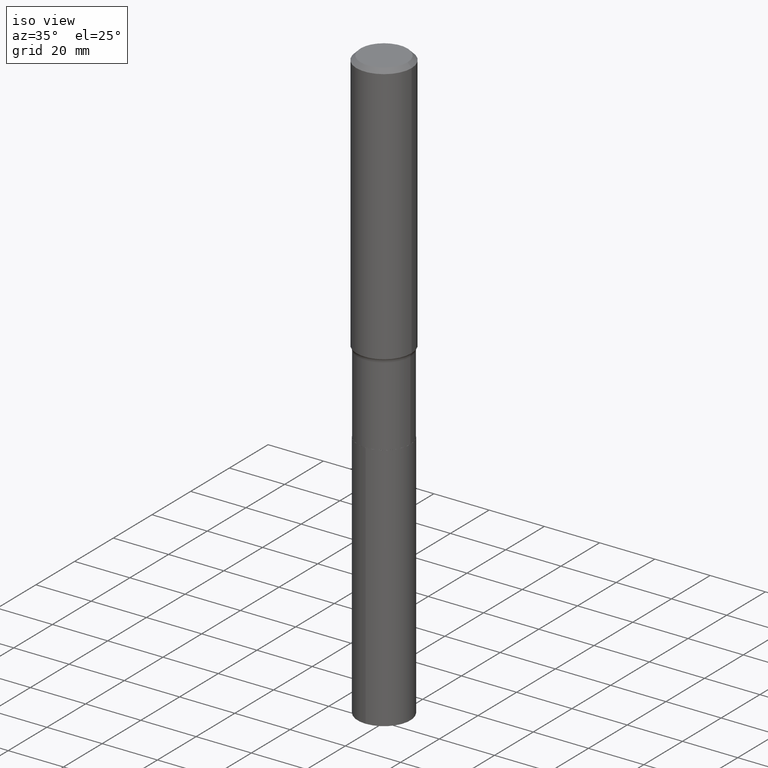
[diagram: clean part render]
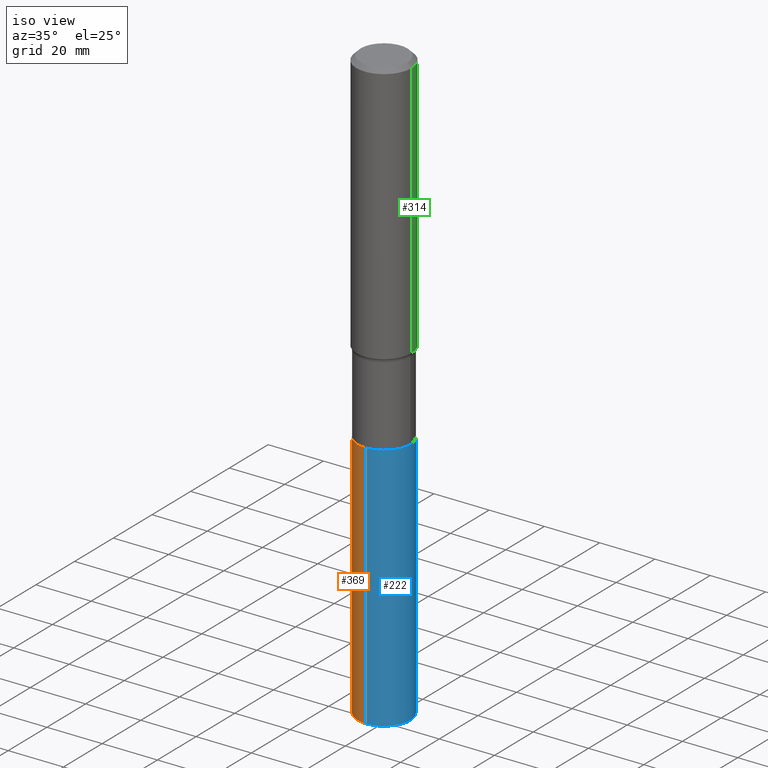
[diagram: same view with three faces highlighted in distinct colors, each labeled with its STEP entity id]
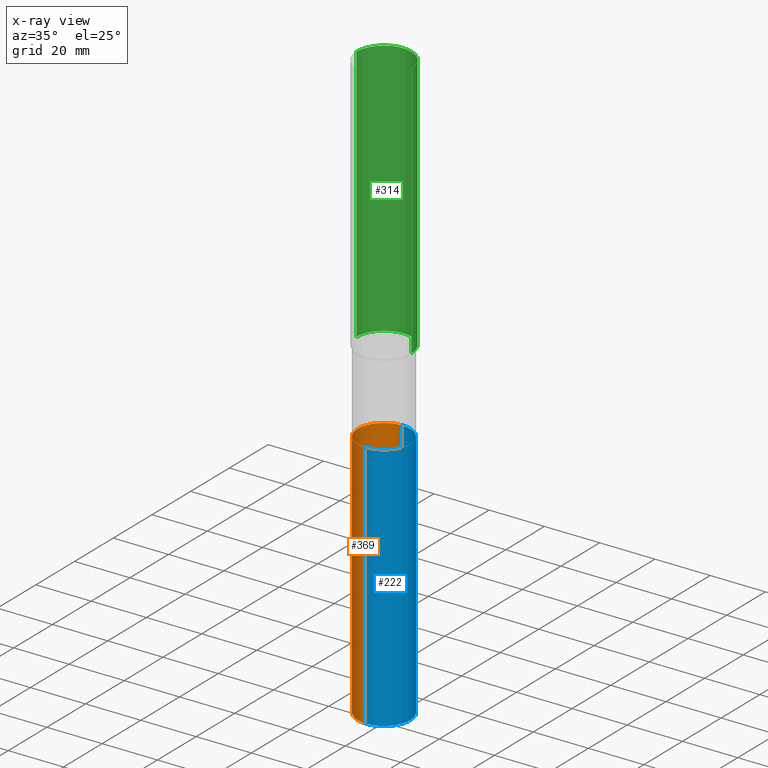
[diagram: x-ray of the same camera — body ghosted, the three highlighted faces saturated]
A machine part, iso view with three faces highlighted in distinct colors.
The next image is the same camera in x-ray (body ghosted, the three faces saturated) — at least one of them is partly hidden behind the body in this view.
Their STEP definitions:

[orange] entity #369 — the highlighted cylindrical surface (edge-blend (fillet) strip) has radius 9.525 mm, axis along (-0, 0, 1).
#8 = DIRECTION ( 'NONE',  ( -2.445198401079146413E-29, 3.491868574345426039E-15, 1.000000000000000000 ) ) ;
#13 = DIRECTION ( 'NONE',  ( -2.445198401079146413E-29, 3.491868574345426433E-15, 1.000000000000000000 ) ) ;
#14 = EDGE_CURVE ( 'NONE', #425, #325, #250, .T. ) ;
#35 = CARTESIAN_POINT ( 'NONE',  ( 2.664535259100583167E-15, 0.3749999999999829026, -4.909600000000002851 ) ) ;
#58 = AXIS2_PLACEMENT_3D ( 'NONE', #86, #268, #231 ) ;
#86 = CARTESIAN_POINT ( 'NONE',  ( 2.069895396668291892E-28, -2.955536956298230734E-14, -8.464600000000002566 ) ) ;
#89 = AXIS2_PLACEMENT_3D ( 'NONE', #329, #13, #368 ) ;
#92 = EDGE_LOOP ( 'NONE', ( #209, #427, #169, #216 ) ) ;
#94 = DIRECTION ( 'NONE',  ( -6.982962677686265922E-15, -1.000000000000000000, 2.913971193241880372E-15 ) ) ;
#100 = CIRCLE ( 'NONE', #58, 0.3750000000000000555 ) ;
#111 = AXIS2_PLACEMENT_3D ( 'NONE', #239, #170, #94 ) ;
#113 = CARTESIAN_POINT ( 'NONE',  ( -2.618611004132230110E-15, -0.3750000000000171529, -4.909600000000000186 ) ) ;
#116 = LINE ( 'NONE', #113, #179 ) ;
#117 = EDGE_CURVE ( 'NONE', #398, #325, #116, .T. ) ;
#119 = CARTESIAN_POINT ( 'NONE',  ( 2.664535259100495209E-15, 0.3749999999999829026, -4.909600000000002851 ) ) ;
#132 = FACE_OUTER_BOUND ( 'NONE', #92, .T. ) ;
#134 = CARTESIAN_POINT ( 'NONE',  ( -2.618611004132142940E-15, -0.3750000000000295874, -8.464600000000000790 ) ) ;
#153 = EDGE_CURVE ( 'NONE', #248, #425, #297, .T. ) ;
#169 = ORIENTED_EDGE ( 'NONE', *, *, #117, .T. ) ;
#170 = DIRECTION ( 'NONE',  ( -2.445198401079146413E-29, 3.491868574345426433E-15, 1.000000000000000000 ) ) ;
#179 = VECTOR ( 'NONE', #8, 39.37007874015748143 ) ;
#209 = ORIENTED_EDGE ( 'NONE', *, *, #153, .F. ) ;
#216 = ORIENTED_EDGE ( 'NONE', *, *, #14, .F. ) ;
#231 = DIRECTION ( 'NONE',  ( -6.982962677686265922E-15, -1.000000000000000000, 2.913971193241880372E-15 ) ) ;
#232 = EDGE_CURVE ( 'NONE', #248, #398, #100, .T. ) ;
#239 = CARTESIAN_POINT ( 'NONE',  ( 1.200627365084655066E-28, -1.714177678118431257E-14, -4.909600000000001963 ) ) ;
#248 = VERTEX_POINT ( 'NONE', #384 ) ;
#250 = CIRCLE ( 'NONE', #89, 0.3750000000000000555 ) ;
#252 = VECTOR ( 'NONE', #409, 39.37007874015748143 ) ;
#268 = DIRECTION ( 'NONE',  ( -2.445198401079146413E-29, 3.491868574345426433E-15, 1.000000000000000000 ) ) ;
#297 = LINE ( 'NONE', #119, #252 ) ;
#323 = CYLINDRICAL_SURFACE ( 'NONE', #111, 0.3750000000000000555 ) ;
#325 = VERTEX_POINT ( 'NONE', #420 ) ;
#329 = CARTESIAN_POINT ( 'NONE',  ( 1.200627365084655291E-28, -1.714177678118431573E-14, -4.909600000000001963 ) ) ;
#368 = DIRECTION ( 'NONE',  ( -6.982962677686265922E-15, -1.000000000000000000, 2.913971193241880372E-15 ) ) ;
#369 = ADVANCED_FACE ( 'NONE', ( #132 ), #323, .T. ) ;
#384 = CARTESIAN_POINT ( 'NONE',  ( 2.664535259100538991E-15, 0.3749999999999704681, -8.464600000000004343 ) ) ;
#398 = VERTEX_POINT ( 'NONE', #134 ) ;
#409 = DIRECTION ( 'NONE',  ( -2.445198401079146413E-29, 3.491868574345426039E-15, 1.000000000000000000 ) ) ;
#420 = CARTESIAN_POINT ( 'NONE',  ( -2.618611004132230110E-15, -0.3750000000000171529, -4.909600000000001074 ) ) ;
#425 = VERTEX_POINT ( 'NONE', #35 ) ;
#427 = ORIENTED_EDGE ( 'NONE', *, *, #232, .T. ) ;

[blue] entity #222 — the highlighted cylindrical surface (edge-blend (fillet) strip) has radius 9.525 mm, axis along (-0, 0, 1).
#8 = DIRECTION ( 'NONE',  ( -2.445198401079146413E-29, 3.491868574345426039E-15, 1.000000000000000000 ) ) ;
#35 = CARTESIAN_POINT ( 'NONE',  ( 2.664535259100583167E-15, 0.3749999999999829026, -4.909600000000002851 ) ) ;
#88 = CARTESIAN_POINT ( 'NONE',  ( 2.069895396668291892E-28, -2.955536956298230734E-14, -8.464600000000002566 ) ) ;
#97 = EDGE_LOOP ( 'NONE', ( #105, #241, #284, #249 ) ) ;
#105 = ORIENTED_EDGE ( 'NONE', *, *, #210, .T. ) ;
#113 = CARTESIAN_POINT ( 'NONE',  ( -2.618611004132230110E-15, -0.3750000000000171529, -4.909600000000000186 ) ) ;
#116 = LINE ( 'NONE', #113, #179 ) ;
#117 = EDGE_CURVE ( 'NONE', #398, #325, #116, .T. ) ;
#119 = CARTESIAN_POINT ( 'NONE',  ( 2.664535259100495209E-15, 0.3749999999999829026, -4.909600000000002851 ) ) ;
#134 = CARTESIAN_POINT ( 'NONE',  ( -2.618611004132142940E-15, -0.3750000000000295874, -8.464600000000000790 ) ) ;
#153 = EDGE_CURVE ( 'NONE', #248, #425, #297, .T. ) ;
#160 = AXIS2_PLACEMENT_3D ( 'NONE', #88, #273, #375 ) ;
#179 = VECTOR ( 'NONE', #8, 39.37007874015748143 ) ;
#210 = EDGE_CURVE ( 'NONE', #398, #248, #227, .T. ) ;
#222 = ADVANCED_FACE ( 'NONE', ( #352 ), #417, .T. ) ;
#227 = CIRCLE ( 'NONE', #160, 0.3750000000000000555 ) ;
#234 = DIRECTION ( 'NONE',  ( -6.982962677686265922E-15, -1.000000000000000000, 2.913971193241880372E-15 ) ) ;
#236 = DIRECTION ( 'NONE',  ( -2.445198401079146413E-29, 3.491868574345426433E-15, 1.000000000000000000 ) ) ;
#241 = ORIENTED_EDGE ( 'NONE', *, *, #153, .T. ) ;
#248 = VERTEX_POINT ( 'NONE', #384 ) ;
#249 = ORIENTED_EDGE ( 'NONE', *, *, #117, .F. ) ;
#252 = VECTOR ( 'NONE', #409, 39.37007874015748143 ) ;
#256 = EDGE_CURVE ( 'NONE', #325, #425, #400, .T. ) ;
#273 = DIRECTION ( 'NONE',  ( -2.445198401079146413E-29, 3.491868574345426433E-15, 1.000000000000000000 ) ) ;
#284 = ORIENTED_EDGE ( 'NONE', *, *, #256, .F. ) ;
#297 = LINE ( 'NONE', #119, #252 ) ;
#308 = DIRECTION ( 'NONE',  ( -6.982962677686265922E-15, -1.000000000000000000, 2.913971193241880372E-15 ) ) ;
#325 = VERTEX_POINT ( 'NONE', #420 ) ;
#345 = DIRECTION ( 'NONE',  ( -2.445198401079146413E-29, 3.491868574345426433E-15, 1.000000000000000000 ) ) ;
#352 = FACE_OUTER_BOUND ( 'NONE', #97, .T. ) ;
#374 = AXIS2_PLACEMENT_3D ( 'NONE', #452, #345, #234 ) ;
#375 = DIRECTION ( 'NONE',  ( -6.982962677686265922E-15, -1.000000000000000000, 2.913971193241880372E-15 ) ) ;
#380 = CARTESIAN_POINT ( 'NONE',  ( 1.200627365084655066E-28, -1.714177678118431257E-14, -4.909600000000001963 ) ) ;
#384 = CARTESIAN_POINT ( 'NONE',  ( 2.664535259100538991E-15, 0.3749999999999704681, -8.464600000000004343 ) ) ;
#398 = VERTEX_POINT ( 'NONE', #134 ) ;
#400 = CIRCLE ( 'NONE', #374, 0.3750000000000000555 ) ;
#409 = DIRECTION ( 'NONE',  ( -2.445198401079146413E-29, 3.491868574345426039E-15, 1.000000000000000000 ) ) ;
#417 = CYLINDRICAL_SURFACE ( 'NONE', #463, 0.3750000000000000555 ) ;
#420 = CARTESIAN_POINT ( 'NONE',  ( -2.618611004132230110E-15, -0.3750000000000171529, -4.909600000000001074 ) ) ;
#425 = VERTEX_POINT ( 'NONE', #35 ) ;
#452 = CARTESIAN_POINT ( 'NONE',  ( 1.200627365084655291E-28, -1.714177678118431573E-14, -4.909600000000001963 ) ) ;
#463 = AXIS2_PLACEMENT_3D ( 'NONE', #380, #236, #308 ) ;

[green] entity #314 — the highlighted cylindrical surface (edge-blend (fillet) strip) has radius 10 mm, axis along (-0, 0, 1).
#11 = CARTESIAN_POINT ( 'NONE',  ( 9.123302149498150808E-29, -1.302565754387660920E-14, -3.730696595443491859 ) ) ;
#15 = CYLINDRICAL_SURFACE ( 'NONE', #330, 0.3937000000000002164 ) ;
#17 = DIRECTION ( 'NONE',  ( 1.000000000000000000, -6.982962677686265133E-15, 0.000000000000000000 ) ) ;
#18 = EDGE_CURVE ( 'NONE', #465, #60, #77, .T. ) ;
#24 = AXIS2_PLACEMENT_3D ( 'NONE', #11, #47, #17 ) ;
#25 = VERTEX_POINT ( 'NONE', #265 ) ;
#28 = ORIENTED_EDGE ( 'NONE', *, *, #174, .F. ) ;
#44 = DIRECTION ( 'NONE',  ( 1.000000000000000000, -6.982962677686265922E-15, 0.000000000000000000 ) ) ;
#47 = DIRECTION ( 'NONE',  ( -2.445468806185136597E-29, 3.491481338843145583E-15, 1.000000000000000000 ) ) ;
#60 = VERTEX_POINT ( 'NONE', #443 ) ;
#72 = VECTOR ( 'NONE', #448, 39.37007874015748143 ) ;
#77 = LINE ( 'NONE', #344, #99 ) ;
#99 = VECTOR ( 'NONE', #226, 39.37007874015748143 ) ;
#110 = LINE ( 'NONE', #310, #72 ) ;
#125 = DIRECTION ( 'NONE',  ( 1.000000000000000000, -6.982962677686266711E-15, 4.876176775795935793E-29 ) ) ;
#138 = AXIS2_PLACEMENT_3D ( 'NONE', #424, #378, #44 ) ;
#159 = CARTESIAN_POINT ( 'NONE',  ( 0.000000000000000000, 0.000000000000000000, 0.000000000000000000 ) ) ;
#165 = CIRCLE ( 'NONE', #24, 0.3937000000000004940 ) ;
#174 = EDGE_CURVE ( 'NONE', #25, #434, #110, .T. ) ;
#199 = FACE_OUTER_BOUND ( 'NONE', #217, .T. ) ;
#217 = EDGE_LOOP ( 'NONE', ( #355, #435, #319, #28 ) ) ;
#226 = DIRECTION ( 'NONE',  ( -2.445468806185136877E-29, 3.491481338843145188E-15, 1.000000000000000000 ) ) ;
#242 = CARTESIAN_POINT ( 'NONE',  ( -0.3937000000000006605, -1.022825079318909047E-14, -3.730696595443491859 ) ) ;
#265 = CARTESIAN_POINT ( 'NONE',  ( 0.3937000000000006605, -1.577484995008169557E-14, -3.730696595443491859 ) ) ;
#274 = EDGE_CURVE ( 'NONE', #434, #60, #351, .T. ) ;
#295 = EDGE_CURVE ( 'NONE', #25, #465, #165, .T. ) ;
#310 = CARTESIAN_POINT ( 'NONE',  ( 0.3937000000000002164, -2.749192406205084794E-15, 1.919750796630861012E-29 ) ) ;
#314 = ADVANCED_FACE ( 'NONE', ( #199 ), #15, .T. ) ;
#319 = ORIENTED_EDGE ( 'NONE', *, *, #274, .F. ) ;
#330 = AXIS2_PLACEMENT_3D ( 'NONE', #159, #450, #125 ) ;
#344 = CARTESIAN_POINT ( 'NONE',  ( -0.3937000000000002164, 2.797406750687515970E-15, -1.936584745033357576E-29 ) ) ;
#351 = CIRCLE ( 'NONE', #138, 0.3937000000000000499 ) ;
#355 = ORIENTED_EDGE ( 'NONE', *, *, #295, .T. ) ;
#378 = DIRECTION ( 'NONE',  ( -2.445468806185136597E-29, 3.491481338843145583E-15, 1.000000000000000000 ) ) ;
#424 = CARTESIAN_POINT ( 'NONE',  ( 1.444171603492642072E-30, -2.061894304653833712E-16, -0.05905500000000039884 ) ) ;
#428 = CARTESIAN_POINT ( 'NONE',  ( 0.3937000000000000499, -2.955381836670466588E-15, -0.05905500000000039884 ) ) ;
#434 = VERTEX_POINT ( 'NONE', #428 ) ;
#435 = ORIENTED_EDGE ( 'NONE', *, *, #18, .T. ) ;
#443 = CARTESIAN_POINT ( 'NONE',  ( -0.3937000000000000499, -3.818516736483479131E-15, -0.05905500000000039884 ) ) ;
#448 = DIRECTION ( 'NONE',  ( -2.445468806185136877E-29, 3.491481338843145188E-15, 1.000000000000000000 ) ) ;
#450 = DIRECTION ( 'NONE',  ( -2.445468806185136597E-29, 3.491481338843145583E-15, 1.000000000000000000 ) ) ;
#465 = VERTEX_POINT ( 'NONE', #242 ) ;